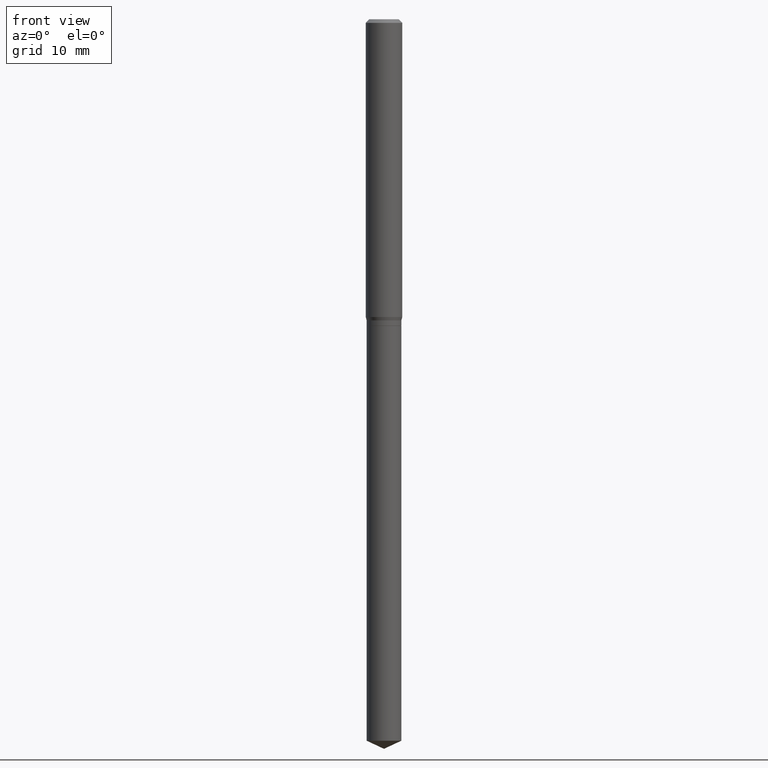
[diagram: clean part render]
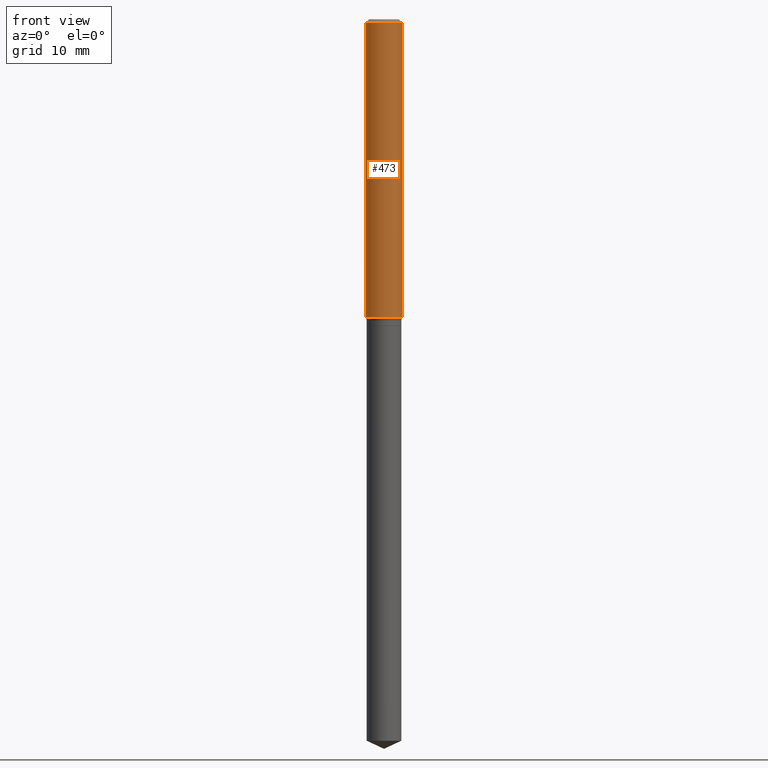
[diagram: same view with one face highlighted and labeled with its STEP entity id]
A machine part, front view. The second image highlights one B-rep face of the part: STEP entity #473.
In plain terms, the highlighted cylindrical surface (edge-blend (fillet) strip) has radius 1.4999 mm, axis along (-0, 0, 1).
Its self-contained STEP definition (entity closure, byte-faithful):
#6 = VERTEX_POINT ( 'NONE', #44 ) ;
#17 = CARTESIAN_POINT ( 'NONE',  ( 2.888098660104664642E-31, -4.123439461173780879E-17, -0.01181000000000007565 ) ) ;
#22 = DIRECTION ( 'NONE',  ( -2.445468806185136597E-29, 3.491481338843145583E-15, 1.000000000000000000 ) ) ;
#44 = CARTESIAN_POINT ( 'NONE',  ( -0.05905000000000011628, -2.947226626344166706E-15, -0.9642904501176713383 ) ) ;
#48 = AXIS2_PLACEMENT_3D ( 'NONE', #104, #136, #290 ) ;
#67 = LINE ( 'NONE', #216, #459 ) ;
#98 = CARTESIAN_POINT ( 'NONE',  ( 0.05905000000000006077, -4.123439461173744764E-16, 2.879382386107503023E-30 ) ) ;
#99 = EDGE_CURVE ( 'NONE', #138, #184, #404, .T. ) ;
#103 = EDGE_CURVE ( 'NONE', #454, #184, #281, .T. ) ;
#104 = CARTESIAN_POINT ( 'NONE',  ( 0.000000000000000000, 0.000000000000000000, 0.000000000000000000 ) ) ;
#125 = CARTESIAN_POINT ( 'NONE',  ( 0.05905000000000011628, -3.779146057927881513E-15, -0.9642904501176713383 ) ) ;
#136 = DIRECTION ( 'NONE',  ( -2.445468806185136597E-29, 3.491481338843145583E-15, 1.000000000000000000 ) ) ;
#138 = VERTEX_POINT ( 'NONE', #125 ) ;
#143 = CYLINDRICAL_SURFACE ( 'NONE', #48, 0.05905000000000006077 ) ;
#161 = DIRECTION ( 'NONE',  ( 1.000000000000000000, -6.982962677686266711E-15, 0.000000000000000000 ) ) ;
#176 = DIRECTION ( 'NONE',  ( 1.000000000000000000, -6.982962677686266711E-15, 0.000000000000000000 ) ) ;
#177 = ORIENTED_EDGE ( 'NONE', *, *, #103, .F. ) ;
#184 = VERTEX_POINT ( 'NONE', #319 ) ;
#208 = CARTESIAN_POINT ( 'NONE',  ( 2.358142215864989888E-29, -3.366802111810506988E-15, -0.9642904501176713383 ) ) ;
#216 = CARTESIAN_POINT ( 'NONE',  ( -0.05905000000000006077, 4.195754854663395916E-16, -2.904631170795524694E-30 ) ) ;
#246 = CARTESIAN_POINT ( 'NONE',  ( -0.05904999999999999832, -1.284442767744781879E-15, -0.01181000000000007565 ) ) ;
#253 = ORIENTED_EDGE ( 'NONE', *, *, #99, .T. ) ;
#259 = ORIENTED_EDGE ( 'NONE', *, *, #262, .T. ) ;
#262 = EDGE_CURVE ( 'NONE', #6, #138, #453, .T. ) ;
#281 = CIRCLE ( 'NONE', #457, 0.05904999999999999832 ) ;
#290 = DIRECTION ( 'NONE',  ( 1.000000000000000000, -6.982962677686266711E-15, 4.876176775795935793E-29 ) ) ;
#319 = CARTESIAN_POINT ( 'NONE',  ( 0.05904999999999999832, -4.535783407291118600E-16, -0.01181000000000007565 ) ) ;
#331 = ORIENTED_EDGE ( 'NONE', *, *, #452, .F. ) ;
#364 = DIRECTION ( 'NONE',  ( -2.445468806185136877E-29, 3.491481338843145188E-15, 1.000000000000000000 ) ) ;
#366 = DIRECTION ( 'NONE',  ( -2.445468806185136597E-29, 3.491481338843145583E-15, 1.000000000000000000 ) ) ;
#375 = VECTOR ( 'NONE', #364, 39.37007874015748143 ) ;
#401 = AXIS2_PLACEMENT_3D ( 'NONE', #208, #366, #176 ) ;
#404 = LINE ( 'NONE', #98, #375 ) ;
#431 = EDGE_LOOP ( 'NONE', ( #331, #259, #253, #177 ) ) ;
#441 = DIRECTION ( 'NONE',  ( -2.445468806185136877E-29, 3.491481338843145188E-15, 1.000000000000000000 ) ) ;
#452 = EDGE_CURVE ( 'NONE', #6, #454, #67, .T. ) ;
#453 = CIRCLE ( 'NONE', #401, 0.05905000000000011628 ) ;
#454 = VERTEX_POINT ( 'NONE', #246 ) ;
#457 = AXIS2_PLACEMENT_3D ( 'NONE', #17, #22, #161 ) ;
#459 = VECTOR ( 'NONE', #441, 39.37007874015748143 ) ;
#473 = ADVANCED_FACE ( 'NONE', ( #482 ), #143, .T. ) ;
#482 = FACE_OUTER_BOUND ( 'NONE', #431, .T. ) ;